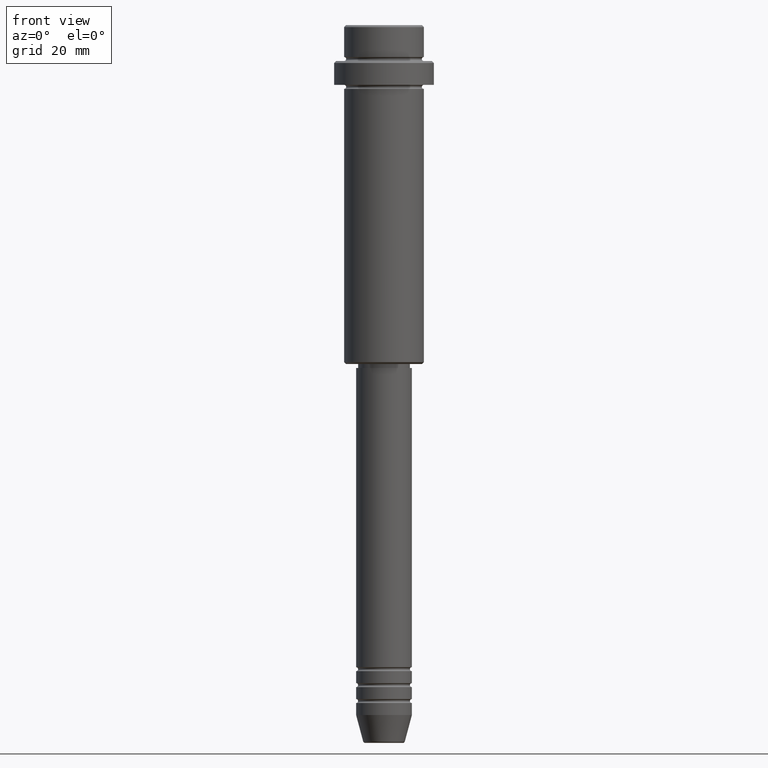
[diagram: clean part render]
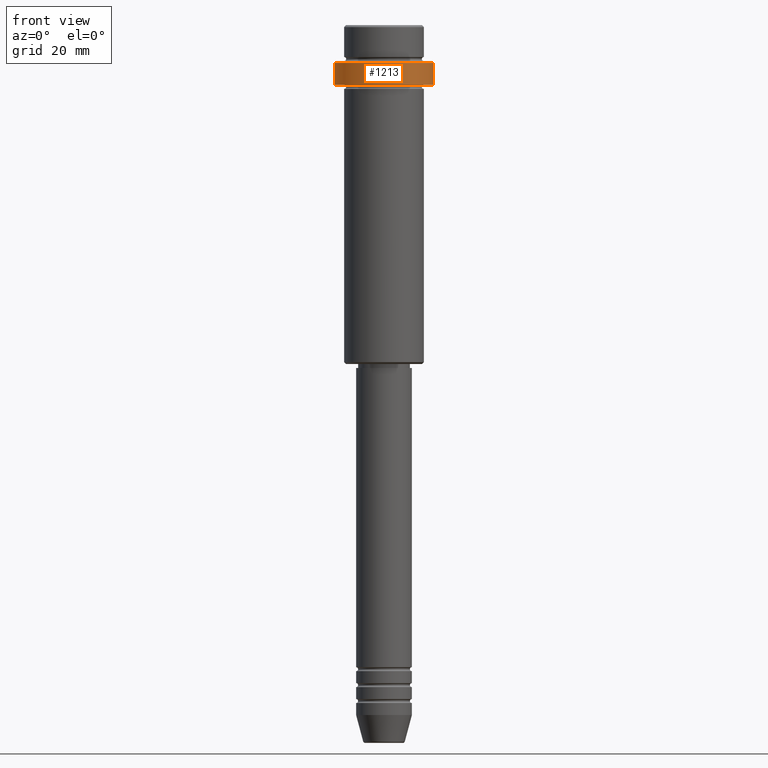
[diagram: same view with one face highlighted and labeled with its STEP entity id]
A machine part, front view. The second image highlights one B-rep face of the part: STEP entity #1213.
In plain terms, the highlighted cylindrical surface (partial cylindrical patch) has radius 12.5 mm, axis along (-0, -0, 1).
Its self-contained STEP definition (entity closure, byte-faithful):
#12 = CIRCLE ( 'NONE', #247, 12.50000000000000000 ) ;
#100 = ORIENTED_EDGE ( 'NONE', *, *, #256, .T. ) ;
#101 = LINE ( 'NONE', #529, #1381 ) ;
#187 = DIRECTION ( 'NONE',  ( -0.000000000000000000, -0.000000000000000000, 1.000000000000000000 ) ) ;
#213 = VERTEX_POINT ( 'NONE', #1114 ) ;
#222 = VERTEX_POINT ( 'NONE', #1339 ) ;
#247 = AXIS2_PLACEMENT_3D ( 'NONE', #553, #986, #774 ) ;
#256 = EDGE_CURVE ( 'NONE', #213, #1208, #836, .T. ) ;
#393 = EDGE_CURVE ( 'NONE', #222, #723, #101, .T. ) ;
#400 = CARTESIAN_POINT ( 'NONE',  ( 12.50000000000000000, 0.000000000000000000, -9.500000000000005329 ) ) ;
#403 = EDGE_LOOP ( 'NONE', ( #810, #513, #100, #657 ) ) ;
#421 = CARTESIAN_POINT ( 'NONE',  ( 0.000000000000000000, 0.000000000000000000, 0.000000000000000000 ) ) ;
#431 = AXIS2_PLACEMENT_3D ( 'NONE', #643, #1399, #645 ) ;
#448 = VECTOR ( 'NONE', #605, 1000.000000000000000 ) ;
#513 = ORIENTED_EDGE ( 'NONE', *, *, #584, .T. ) ;
#529 = CARTESIAN_POINT ( 'NONE',  ( -12.50000000000000000, 1.530808498934191521E-15, 0.000000000000000000 ) ) ;
#553 = CARTESIAN_POINT ( 'NONE',  ( 0.000000000000000000, 0.000000000000000000, -15.00000000000000000 ) ) ;
#584 = EDGE_CURVE ( 'NONE', #222, #213, #12, .T. ) ;
#601 = EDGE_CURVE ( 'NONE', #1208, #723, #861, .T. ) ;
#605 = DIRECTION ( 'NONE',  ( -0.000000000000000000, -0.000000000000000000, 1.000000000000000000 ) ) ;
#643 = CARTESIAN_POINT ( 'NONE',  ( 0.000000000000000000, 0.000000000000000000, -9.500000000000005329 ) ) ;
#645 = DIRECTION ( 'NONE',  ( 1.000000000000000000, 0.000000000000000000, 0.000000000000000000 ) ) ;
#657 = ORIENTED_EDGE ( 'NONE', *, *, #601, .T. ) ;
#723 = VERTEX_POINT ( 'NONE', #1375 ) ;
#774 = DIRECTION ( 'NONE',  ( 1.000000000000000000, 0.000000000000000000, 0.000000000000000000 ) ) ;
#810 = ORIENTED_EDGE ( 'NONE', *, *, #393, .F. ) ;
#835 = DIRECTION ( 'NONE',  ( 1.000000000000000000, 0.000000000000000000, 0.000000000000000000 ) ) ;
#836 = LINE ( 'NONE', #923, #448 ) ;
#861 = CIRCLE ( 'NONE', #431, 12.50000000000000000 ) ;
#923 = CARTESIAN_POINT ( 'NONE',  ( 12.50000000000000000, 0.000000000000000000, 0.000000000000000000 ) ) ;
#938 = FACE_OUTER_BOUND ( 'NONE', #403, .T. ) ;
#942 = CYLINDRICAL_SURFACE ( 'NONE', #1321, 12.50000000000000000 ) ;
#986 = DIRECTION ( 'NONE',  ( -0.000000000000000000, -0.000000000000000000, 1.000000000000000000 ) ) ;
#1114 = CARTESIAN_POINT ( 'NONE',  ( 12.50000000000000000, 0.000000000000000000, -15.00000000000000000 ) ) ;
#1208 = VERTEX_POINT ( 'NONE', #400 ) ;
#1213 = ADVANCED_FACE ( 'NONE', ( #938 ), #942, .T. ) ;
#1289 = DIRECTION ( 'NONE',  ( -0.000000000000000000, -0.000000000000000000, 1.000000000000000000 ) ) ;
#1321 = AXIS2_PLACEMENT_3D ( 'NONE', #421, #187, #835 ) ;
#1339 = CARTESIAN_POINT ( 'NONE',  ( -12.50000000000000000, 1.530808498934191521E-15, -15.00000000000000000 ) ) ;
#1375 = CARTESIAN_POINT ( 'NONE',  ( -12.50000000000000000, 1.530808498934191521E-15, -9.500000000000005329 ) ) ;
#1381 = VECTOR ( 'NONE', #1289, 1000.000000000000000 ) ;
#1399 = DIRECTION ( 'NONE',  ( 0.000000000000000000, 0.000000000000000000, -1.000000000000000000 ) ) ;